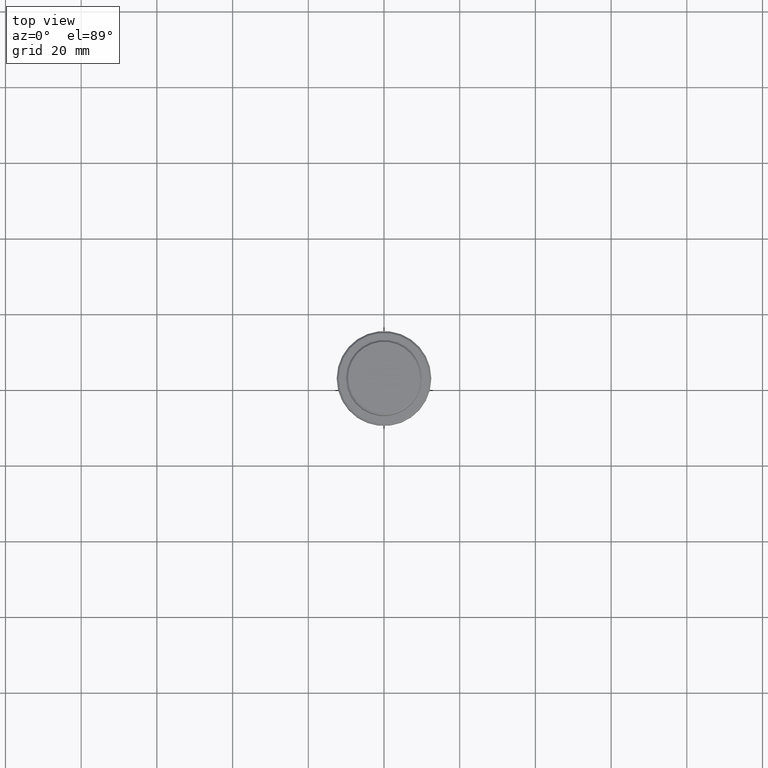
[diagram: clean part render]
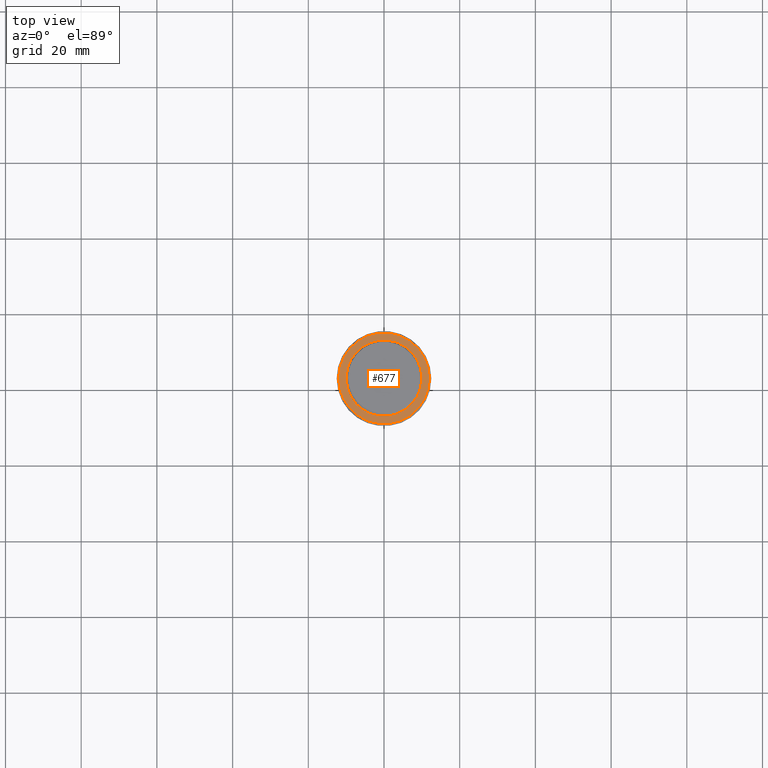
[diagram: same view with one face highlighted and labeled with its STEP entity id]
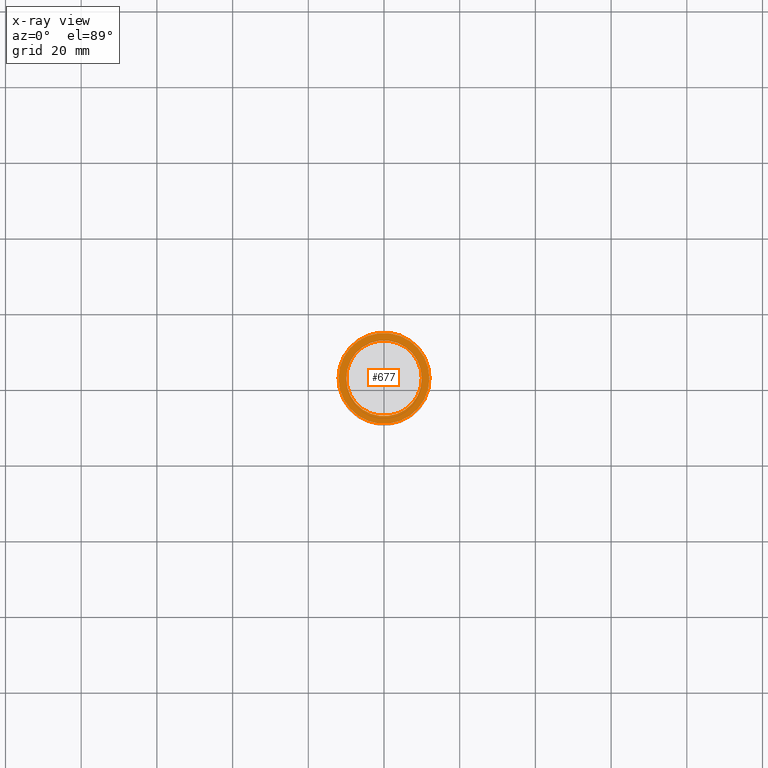
[diagram: x-ray of the same camera — body ghosted, the highlighted face saturated]
A machine part, top view. The second image highlights one B-rep face of the part: STEP entity #677.
The next image is the same camera in x-ray: the body ghosted, the highlighted face saturated — about 0% of this face is hidden behind the body in this view.
In plain terms, the highlighted planar face has unit normal (0, -0, 1).
Its self-contained STEP definition (entity closure, byte-faithful):
#78 = VERTEX_POINT ( 'NONE', #474 ) ;
#88 = FACE_BOUND ( 'NONE', #738, .T. ) ;
#89 = CARTESIAN_POINT ( 'NONE',  ( 0.000000000000000000, 0.000000000000000000, -9.000000000000001776 ) ) ;
#129 = DIRECTION ( 'NONE',  ( 1.000000000000000000, 0.000000000000000000, 0.000000000000000000 ) ) ;
#187 = AXIS2_PLACEMENT_3D ( 'NONE', #809, #1241, #705 ) ;
#211 = AXIS2_PLACEMENT_3D ( 'NONE', #1322, #1209, #129 ) ;
#274 = CARTESIAN_POINT ( 'NONE',  ( 0.000000000000000000, 0.000000000000000000, -9.000000000000001776 ) ) ;
#286 = CIRCLE ( 'NONE', #292, 9.999999999999994671 ) ;
#292 = AXIS2_PLACEMENT_3D ( 'NONE', #89, #942, #305 ) ;
#305 = DIRECTION ( 'NONE',  ( 1.000000000000000000, 0.000000000000000000, 0.000000000000000000 ) ) ;
#306 = AXIS2_PLACEMENT_3D ( 'NONE', #274, #1021, #580 ) ;
#345 = VERTEX_POINT ( 'NONE', #1390 ) ;
#367 = VERTEX_POINT ( 'NONE', #860 ) ;
#376 = AXIS2_PLACEMENT_3D ( 'NONE', #836, #1276, #851 ) ;
#412 = EDGE_CURVE ( 'NONE', #1404, #78, #1210, .T. ) ;
#474 = CARTESIAN_POINT ( 'NONE',  ( -12.00000000000001066, 0.000000000000000000, -9.000000000000001776 ) ) ;
#580 = DIRECTION ( 'NONE',  ( 1.000000000000000000, 0.000000000000000000, 0.000000000000000000 ) ) ;
#590 = CIRCLE ( 'NONE', #306, 9.999999999999994671 ) ;
#677 = ADVANCED_FACE ( 'NONE', ( #1062, #88 ), #1400, .T. ) ;
#705 = DIRECTION ( 'NONE',  ( 1.000000000000000000, 0.000000000000000000, 0.000000000000000000 ) ) ;
#719 = EDGE_CURVE ( 'NONE', #78, #1404, #1287, .T. ) ;
#738 = EDGE_LOOP ( 'NONE', ( #1039, #853 ) ) ;
#748 = CARTESIAN_POINT ( 'NONE',  ( 12.00000000000001066, 1.500192328955508326E-15, -9.000000000000001776 ) ) ;
#765 = ORIENTED_EDGE ( 'NONE', *, *, #719, .T. ) ;
#809 = CARTESIAN_POINT ( 'NONE',  ( 0.000000000000000000, 0.000000000000000000, -9.000000000000001776 ) ) ;
#836 = CARTESIAN_POINT ( 'NONE',  ( 0.000000000000000000, 9.499999999999994671, -9.000000000000001776 ) ) ;
#851 = DIRECTION ( 'NONE',  ( 1.000000000000000000, 0.000000000000000000, 0.000000000000000000 ) ) ;
#853 = ORIENTED_EDGE ( 'NONE', *, *, #1050, .T. ) ;
#860 = CARTESIAN_POINT ( 'NONE',  ( -9.999999999999994671, 1.224646799147352665E-15, -9.000000000000001776 ) ) ;
#942 = DIRECTION ( 'NONE',  ( 0.000000000000000000, 0.000000000000000000, -1.000000000000000000 ) ) ;
#980 = EDGE_LOOP ( 'NONE', ( #765, #1126 ) ) ;
#1021 = DIRECTION ( 'NONE',  ( 0.000000000000000000, 0.000000000000000000, -1.000000000000000000 ) ) ;
#1039 = ORIENTED_EDGE ( 'NONE', *, *, #1338, .T. ) ;
#1050 = EDGE_CURVE ( 'NONE', #367, #345, #286, .T. ) ;
#1062 = FACE_OUTER_BOUND ( 'NONE', #980, .T. ) ;
#1126 = ORIENTED_EDGE ( 'NONE', *, *, #412, .T. ) ;
#1209 = DIRECTION ( 'NONE',  ( -0.000000000000000000, -0.000000000000000000, 1.000000000000000000 ) ) ;
#1210 = CIRCLE ( 'NONE', #211, 12.00000000000001066 ) ;
#1241 = DIRECTION ( 'NONE',  ( -0.000000000000000000, -0.000000000000000000, 1.000000000000000000 ) ) ;
#1276 = DIRECTION ( 'NONE',  ( 0.000000000000000000, -0.000000000000000000, 1.000000000000000000 ) ) ;
#1287 = CIRCLE ( 'NONE', #187, 12.00000000000001066 ) ;
#1322 = CARTESIAN_POINT ( 'NONE',  ( 0.000000000000000000, 0.000000000000000000, -9.000000000000001776 ) ) ;
#1338 = EDGE_CURVE ( 'NONE', #345, #367, #590, .T. ) ;
#1390 = CARTESIAN_POINT ( 'NONE',  ( 9.999999999999994671, 0.000000000000000000, -9.000000000000001776 ) ) ;
#1400 = PLANE ( 'NONE',  #376 ) ;
#1404 = VERTEX_POINT ( 'NONE', #748 ) ;